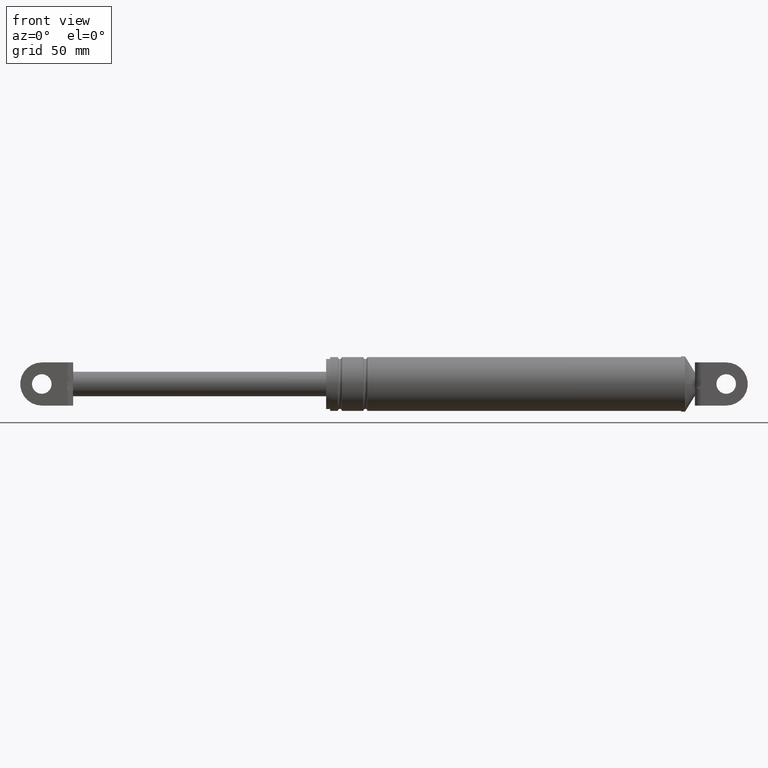
[diagram: clean part render]
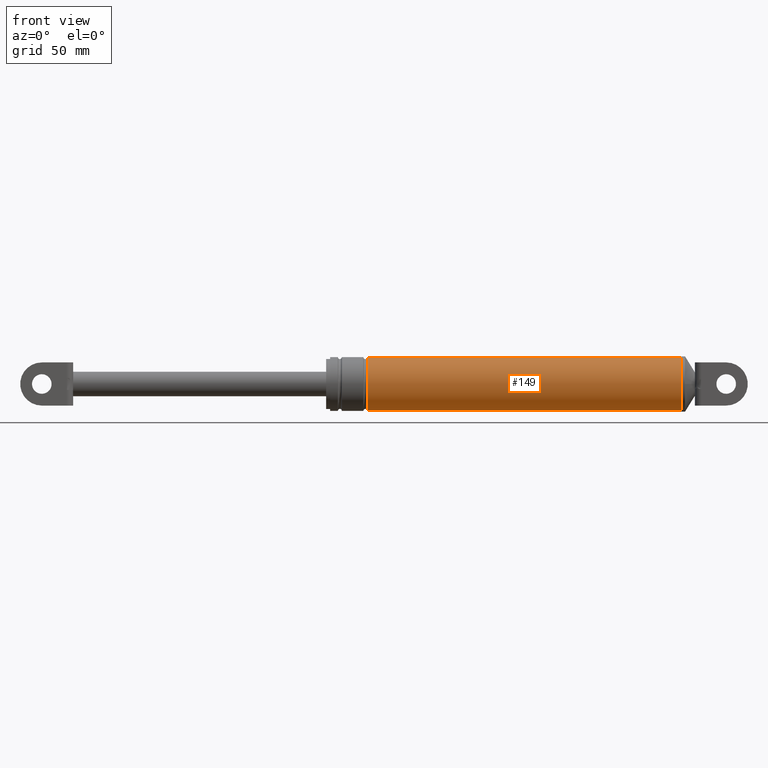
[diagram: same view with one face highlighted and labeled with its STEP entity id]
A machine part, front view. The second image highlights one B-rep face of the part: STEP entity #149.
In plain terms, the highlighted cylindrical surface (edge-blend (fillet) strip) has radius 13.7 mm, axis along (1, 0, 0).
Its self-contained STEP definition (entity closure, byte-faithful):
#149=ADVANCED_FACE('',(#553),#552,.T.);
#552=CYLINDRICAL_SURFACE('',#1208,1.37000000000E+001);
#553=FACE_OUTER_BOUND('',#1209,.T.);
#1205=CARTESIAN_POINT('',(0.00000000000E+000,0.00000000000E+000,1.77370805655E+002));
#1206=DIRECTION('',(1.00000000000E+000,-0.00000000000E+000,-0.00000000000E+000));
#1207=DIRECTION('',(-0.00000000000E+000,-0.00000000000E+000,-1.00000000000E+000));
#1208=AXIS2_PLACEMENT_3D('',#1205,#1206,#1207);
#1209=EDGE_LOOP('',(#1576,#1577,#1578,#1579));
#1576=ORIENTED_EDGE('',*,*,#1795,.F.);
#1577=ORIENTED_EDGE('',*,*,#1804,.T.);
#1578=ORIENTED_EDGE('',*,*,#1772,.T.);
#1579=ORIENTED_EDGE('',*,*,#1805,.F.);
#1772=EDGE_CURVE('',#2274,#2275,#2276,.T.);
#1795=EDGE_CURVE('',#2391,#2390,#2424,.T.);
#1804=EDGE_CURVE('',#2391,#2274,#2482,.T.);
#1805=EDGE_CURVE('',#2390,#2275,#2488,.T.);
#2274=VERTEX_POINT('',#3188);
#2275=VERTEX_POINT('',#3189);
#2276=CIRCLE('',#3193,1.37000000000E+001);
#2390=VERTEX_POINT('',#3256);
#2391=VERTEX_POINT('',#3257);
#2424=CIRCLE('',#3287,1.37000000000E+001);
#2482=(BOUNDED_CURVE() B_SPLINE_CURVE(1,(#3316,#3317),.UNSPECIFIED.,.F.,.F.) B_SPLINE_CURVE_WITH_KNOTS((2,2),(5.55555554106E-002,9.44444444405E-001),.UNSPECIFIED.) CURVE() GEOMETRIC_REPRESENTATION_ITEM() RATIONAL_B_SPLINE_CURVE((1.00000000000E+000,1.00000000000E+000)) REPRESENTATION_ITEM('') );
#2488=(BOUNDED_CURVE() B_SPLINE_CURVE(1,(#3318,#3319),.UNSPECIFIED.,.F.,.F.) B_SPLINE_CURVE_WITH_KNOTS((2,2),(5.55555555556E-002,9.44444444444E-001),.UNSPECIFIED.) CURVE() GEOMETRIC_REPRESENTATION_ITEM() RATIONAL_B_SPLINE_CURVE((7.50000000000E-001,7.50000000000E-001)) REPRESENTATION_ITEM('') );
#3188=CARTESIAN_POINT('',(3.56225911423E+002,0.00000000000E+000,1.63670805655E+002));
#3189=CARTESIAN_POINT('',(3.56225911423E+002,0.00000000000E+000,1.91070805655E+002));
#3190=CARTESIAN_POINT('',(3.56225911423E+002,0.00000000000E+000,1.77370805655E+002));
#3191=DIRECTION('',(-1.00000000000E+000,0.00000000000E+000,0.00000000000E+000));
#3192=DIRECTION('',(0.00000000000E+000,-1.22460635382E-016,1.00000000000E+000));
#3193=AXIS2_PLACEMENT_3D('',#3190,#3191,#3192);
#3256=CARTESIAN_POINT('',(1.96225911423E+002,0.00000000000E+000,1.91070805655E+002));
#3257=CARTESIAN_POINT('',(1.96225911423E+002,0.00000000000E+000,1.63670805655E+002));
#3284=CARTESIAN_POINT('',(1.96225911423E+002,0.00000000000E+000,1.77370805655E+002));
#3285=DIRECTION('',(-1.00000000000E+000,0.00000000000E+000,0.00000000000E+000));
#3286=DIRECTION('',(0.00000000000E+000,-1.22460635382E-016,1.00000000000E+000));
#3287=AXIS2_PLACEMENT_3D('',#3284,#3285,#3286);
#3316=CARTESIAN_POINT('',(1.96225911397E+002,0.00000000000E+000,1.63670805655E+002));
#3317=CARTESIAN_POINT('',(3.56225911416E+002,0.00000000000E+000,1.63670805655E+002));
#3318=CARTESIAN_POINT('',(1.96225911423E+002,-5.92118946467E-016,1.91070805655E+002));
#3319=CARTESIAN_POINT('',(3.56225911423E+002,-5.92118946467E-016,1.91070805655E+002));